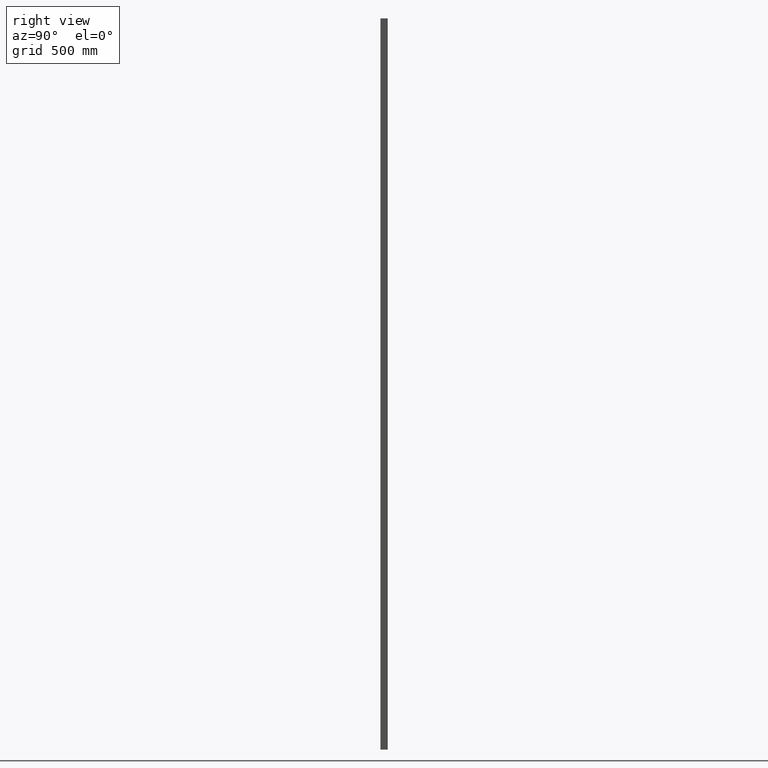
[diagram: clean part render]
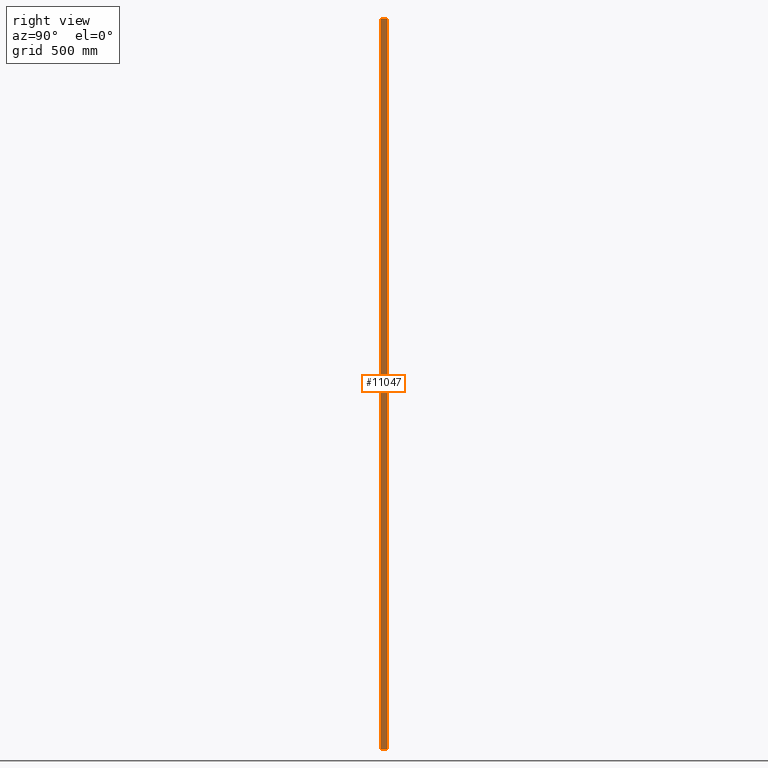
[diagram: same view with one face highlighted and labeled with its STEP entity id]
A machine part, right view. The second image highlights one B-rep face of the part: STEP entity #11047.
In plain terms, the highlighted planar face has unit normal (-1, -0, 0).
Its self-contained STEP definition (entity closure, byte-faithful):
#674 = ORIENTED_EDGE ( 'NONE', *, *, #2167, .F. ) ;
#797 = FACE_OUTER_BOUND ( 'NONE', #9499, .T. ) ;
#1142 = VERTEX_POINT ( 'NONE', #1306 ) ;
#1306 = CARTESIAN_POINT ( 'NONE',  ( 15.00000000000000533, -12.00000000000000355, 1500.000000000000000 ) ) ;
#1383 = CARTESIAN_POINT ( 'NONE',  ( 15.00000000000000000, 11.99999999999999645, 1500.000000000000000 ) ) ;
#1615 = LINE ( 'NONE', #12661, #4715 ) ;
#1656 = VERTEX_POINT ( 'NONE', #15242 ) ;
#2048 = CARTESIAN_POINT ( 'NONE',  ( 15.00000000000000000, 11.99999999999999645, -1500.000000000000000 ) ) ;
#2167 = EDGE_CURVE ( 'NONE', #1142, #1656, #7165, .T. ) ;
#2367 = LINE ( 'NONE', #7312, #5272 ) ;
#2706 = DIRECTION ( 'NONE',  ( 2.168404344971008868E-16, -1.000000000000000000, 0.000000000000000000 ) ) ;
#2900 = ORIENTED_EDGE ( 'NONE', *, *, #15243, .T. ) ;
#3724 = VERTEX_POINT ( 'NONE', #10302 ) ;
#4212 = VECTOR ( 'NONE', #4658, 1000.000000000000000 ) ;
#4658 = DIRECTION ( 'NONE',  ( -2.168404344971008868E-16, 1.000000000000000000, -0.000000000000000000 ) ) ;
#4715 = VECTOR ( 'NONE', #13997, 1000.000000000000000 ) ;
#4749 = EDGE_CURVE ( 'NONE', #3724, #7140, #16538, .T. ) ;
#5204 = PLANE ( 'NONE',  #13209 ) ;
#5272 = VECTOR ( 'NONE', #12745, 1000.000000000000000 ) ;
#6177 = CARTESIAN_POINT ( 'NONE',  ( 15.00000000000000000, 11.99999999999999645, 1500.000000000000000 ) ) ;
#7140 = VERTEX_POINT ( 'NONE', #13628 ) ;
#7165 = LINE ( 'NONE', #6177, #15290 ) ;
#7312 = CARTESIAN_POINT ( 'NONE',  ( 15.00000000000000533, -12.00000000000000355, 1500.000000000000000 ) ) ;
#7977 = DIRECTION ( 'NONE',  ( -1.000000000000000000, -2.168404344971008868E-16, 0.000000000000000000 ) ) ;
#9499 = EDGE_LOOP ( 'NONE', ( #17138, #15568, #674, #2900 ) ) ;
#10302 = CARTESIAN_POINT ( 'NONE',  ( 15.00000000000000533, -12.00000000000000355, -1500.000000000000000 ) ) ;
#11047 = ADVANCED_FACE ( 'NONE', ( #797 ), #5204, .F. ) ;
#11720 = EDGE_CURVE ( 'NONE', #1656, #7140, #1615, .T. ) ;
#12661 = CARTESIAN_POINT ( 'NONE',  ( 15.00000000000000000, 11.99999999999999645, 1500.000000000000000 ) ) ;
#12745 = DIRECTION ( 'NONE',  ( -0.000000000000000000, -0.000000000000000000, -1.000000000000000000 ) ) ;
#13209 = AXIS2_PLACEMENT_3D ( 'NONE', #1383, #7977, #2706 ) ;
#13628 = CARTESIAN_POINT ( 'NONE',  ( 15.00000000000000000, 11.99999999999999645, -1500.000000000000000 ) ) ;
#13997 = DIRECTION ( 'NONE',  ( -0.000000000000000000, -0.000000000000000000, -1.000000000000000000 ) ) ;
#15242 = CARTESIAN_POINT ( 'NONE',  ( 15.00000000000000000, 11.99999999999999645, 1500.000000000000000 ) ) ;
#15243 = EDGE_CURVE ( 'NONE', #1142, #3724, #2367, .T. ) ;
#15290 = VECTOR ( 'NONE', #15504, 1000.000000000000000 ) ;
#15504 = DIRECTION ( 'NONE',  ( -2.168404344971008868E-16, 1.000000000000000000, -0.000000000000000000 ) ) ;
#15568 = ORIENTED_EDGE ( 'NONE', *, *, #11720, .F. ) ;
#16538 = LINE ( 'NONE', #2048, #4212 ) ;
#17138 = ORIENTED_EDGE ( 'NONE', *, *, #4749, .T. ) ;